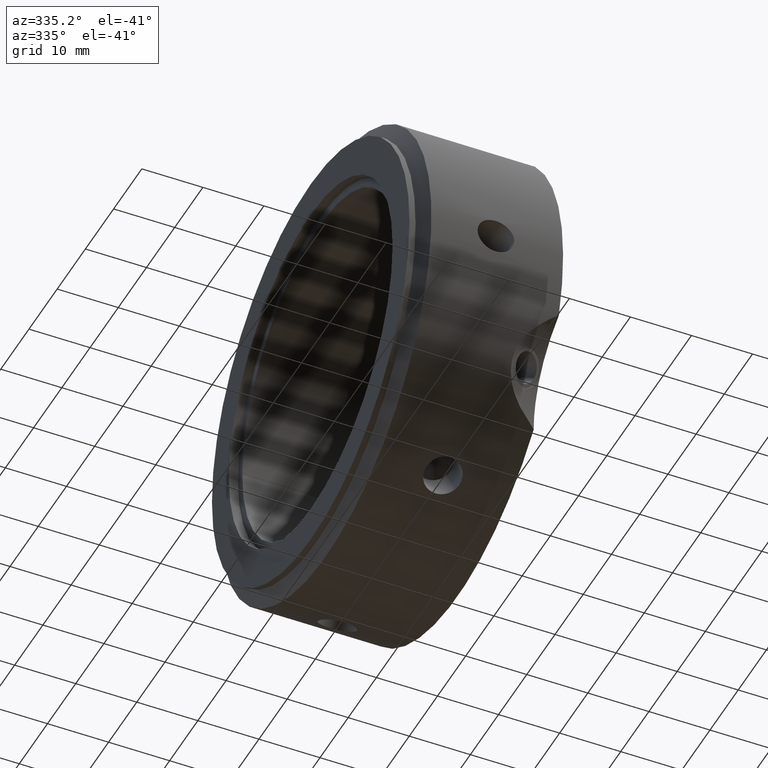
[diagram: clean part render]
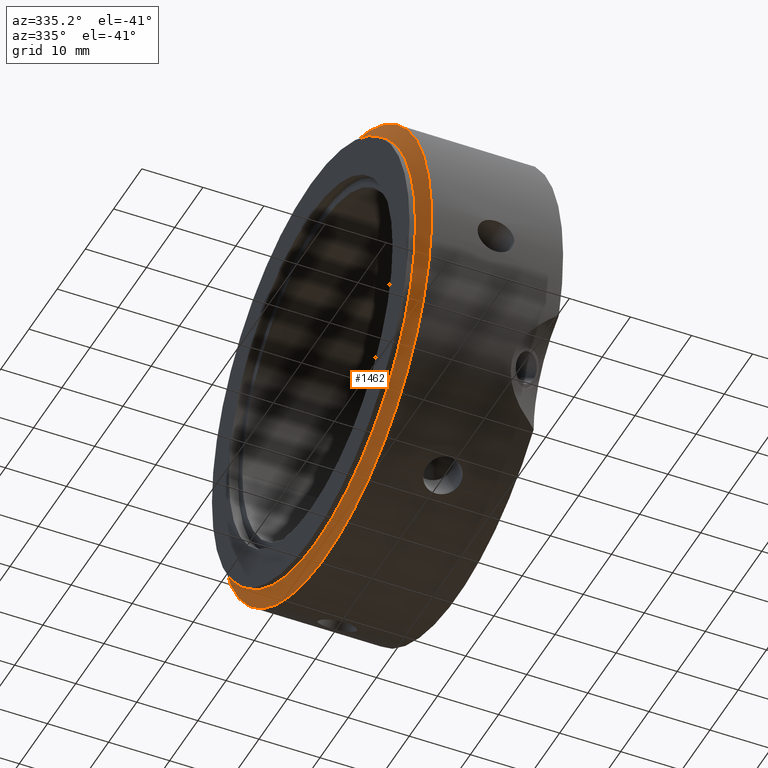
[diagram: same view with one face highlighted and labeled with its STEP entity id]
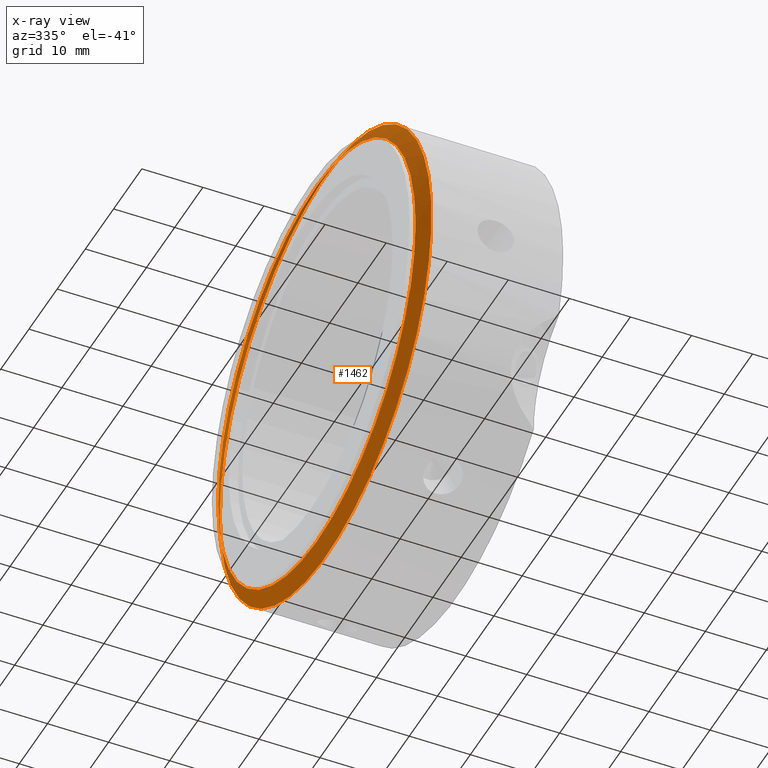
[diagram: x-ray of the same camera — body ghosted, the highlighted face saturated]
A machine part, auxiliary view. The second image highlights one B-rep face of the part: STEP entity #1462.
The next image is the same camera in x-ray: the body ghosted, the highlighted face saturated — about 0% of this face is hidden behind the body in this view.
In plain terms, the highlighted conical surface has half-angle 60 deg.
Its self-contained STEP definition (entity closure, byte-faithful):
#1087=CARTESIAN_POINT('',(2.443375672974056,37.499999999999993,0.0));
#1088=VERTEX_POINT('',#1087);
#1089=CARTESIAN_POINT('',(2.443375672974056,0.0,0.0));
#1090=DIRECTION('',(1.0,0.0,0.0));
#1091=DIRECTION('',(0.0,1.0,0.0));
#1092=AXIS2_PLACEMENT_3D('',#1089,#1090,#1091);
#1093=CIRCLE('',#1092,37.499999999999993);
#1094=EDGE_CURVE('',#1088,#1088,#1093,.T.);
#1436=CARTESIAN_POINT('',(0.999999999999991,34.999999999999993,0.0));
#1437=VERTEX_POINT('',#1436);
#1438=CARTESIAN_POINT('',(0.999999999999991,0.0,0.0));
#1439=DIRECTION('',(1.0,0.0,0.0));
#1440=DIRECTION('',(0.0,1.0,0.0));
#1441=AXIS2_PLACEMENT_3D('',#1438,#1439,#1440);
#1442=CIRCLE('',#1441,34.999999999999993);
#1443=EDGE_CURVE('',#1437,#1437,#1442,.T.);
#1451=CARTESIAN_POINT('',(1.721687836487024,0.0,0.0));
#1452=DIRECTION('',(1.0,0.0,0.0));
#1453=DIRECTION('',(0.0,1.0,0.0));
#1454=AXIS2_PLACEMENT_3D('',#1451,#1452,#1453);
#1455=CONICAL_SURFACE('',#1454,36.249999999999993,60.000000000000043);
#1456=ORIENTED_EDGE('',*,*,#1094,.F.);
#1457=EDGE_LOOP('',(#1456));
#1458=FACE_OUTER_BOUND('',#1457,.T.);
#1459=ORIENTED_EDGE('',*,*,#1443,.T.);
#1460=EDGE_LOOP('',(#1459));
#1461=FACE_BOUND('',#1460,.T.);
#1462=ADVANCED_FACE('',(#1458,#1461),#1455,.T.);